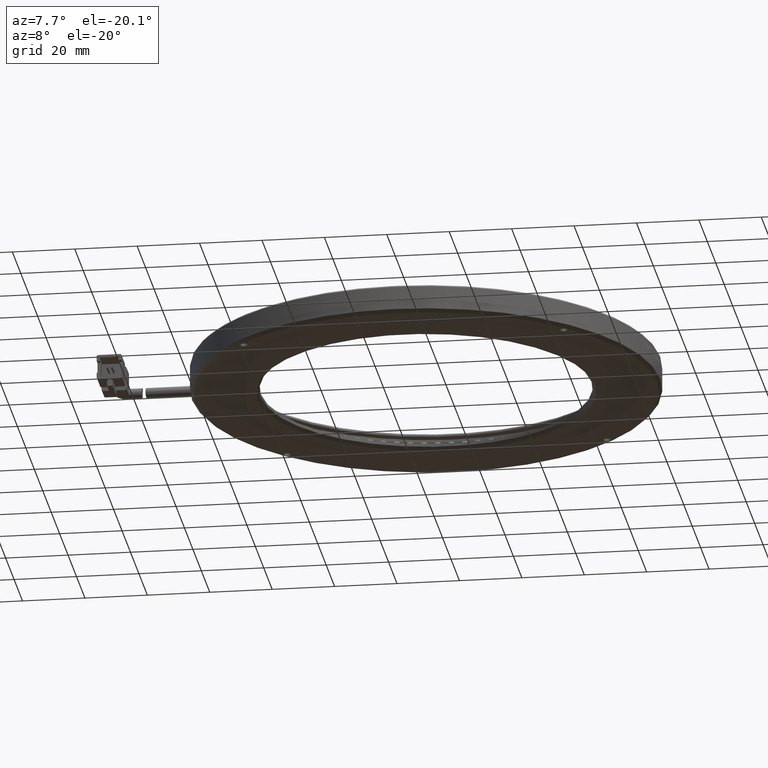
[diagram: clean part render]
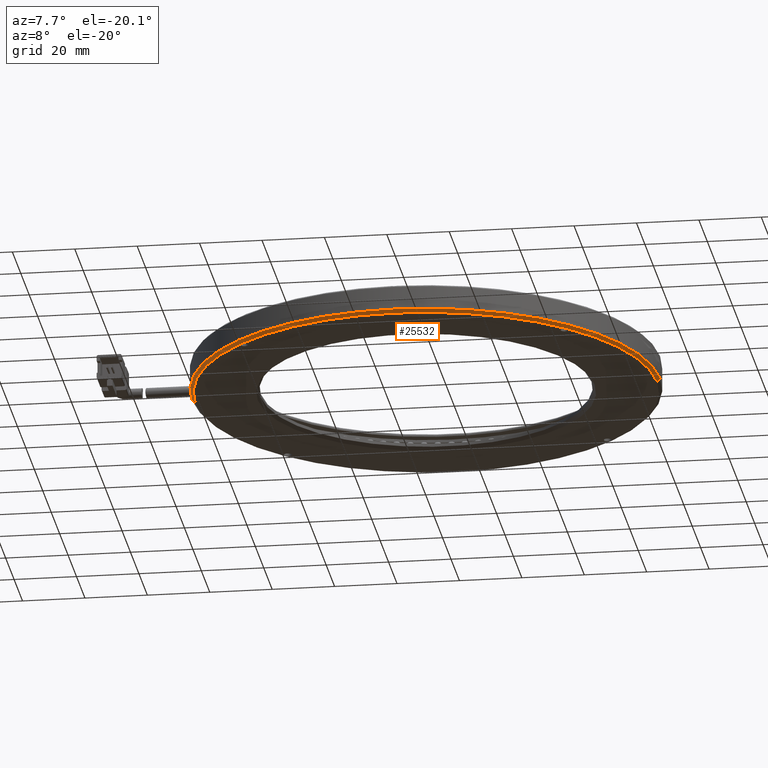
[diagram: same view with one face highlighted and labeled with its STEP entity id]
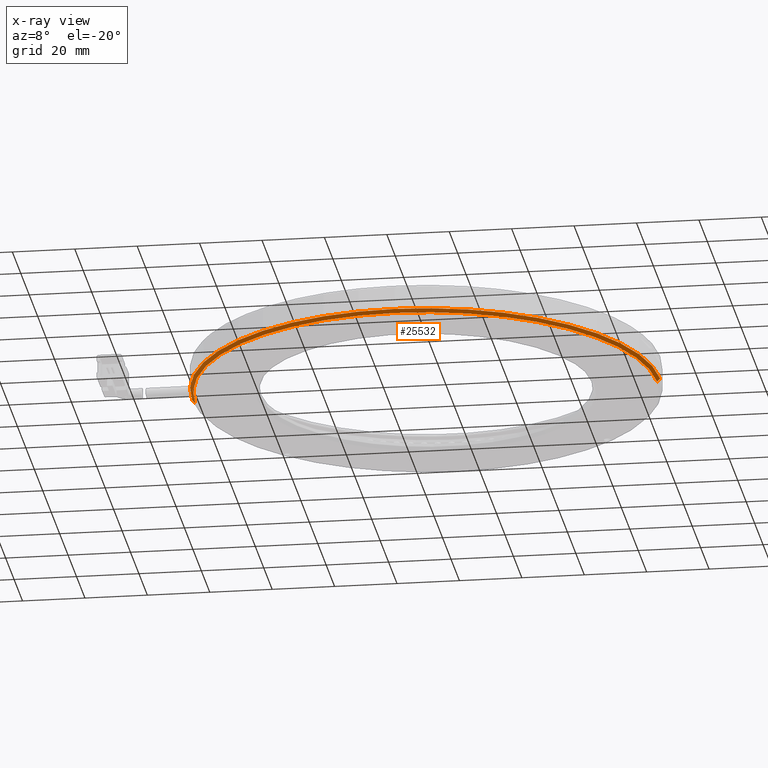
[diagram: x-ray of the same camera — body ghosted, the highlighted face saturated]
A machine part, auxiliary view. The second image highlights one B-rep face of the part: STEP entity #25532.
The next image is the same camera in x-ray: the body ghosted, the highlighted face saturated — about 0% of this face is hidden behind the body in this view.
In plain terms, the highlighted conical surface has half-angle 45 deg.
Its self-contained STEP definition (entity closure, byte-faithful):
#3275 = LINE ( 'NONE', #42011, #35607 ) ;
#10327 = EDGE_CURVE ( 'NONE', #45234, #47845, #68187, .T. ) ;
#12912 = VECTOR ( 'NONE', #47686, 1000.000000000000000 ) ;
#13549 = EDGE_CURVE ( 'NONE', #45234, #69336, #75699, .T. ) ;
#14977 = DIRECTION ( 'NONE',  ( 1.000000000000000000, 0.0000000000000000000, 0.0000000000000000000 ) ) ;
#17329 = CARTESIAN_POINT ( 'NONE',  ( -63.17760152284268600, 1.095939086294429400, -3.500000000000063100 ) ) ;
#18656 = CARTESIAN_POINT ( 'NONE',  ( 84.82239847715739200, 1.095939086294420100, -3.500000000000063100 ) ) ;
#20115 = FACE_OUTER_BOUND ( 'NONE', #56746, .T. ) ;
#20888 = CARTESIAN_POINT ( 'NONE',  ( 10.82239847715735200, 1.095939086294420100, -2.500000000000089700 ) ) ;
#21955 = CARTESIAN_POINT ( 'NONE',  ( 10.82239847715735200, 1.095939086294420100, -3.500000000000063100 ) ) ;
#24880 = DIRECTION ( 'NONE',  ( 0.0000000000000000000, 0.0000000000000000000, -1.000000000000000000 ) ) ;
#25532 = ADVANCED_FACE ( 'NONE', ( #20115 ), #75237, .T. ) ;
#27362 = ORIENTED_EDGE ( 'NONE', *, *, #13549, .F. ) ;
#28024 = DIRECTION ( 'NONE',  ( 1.000000000000000000, 0.0000000000000000000, 0.0000000000000000000 ) ) ;
#31318 = AXIS2_PLACEMENT_3D ( 'NONE', #61341, #24880, #67433 ) ;
#35607 = VECTOR ( 'NONE', #47906, 1000.000000000000000 ) ;
#38239 = ORIENTED_EDGE ( 'NONE', *, *, #69933, .T. ) ;
#39861 = EDGE_CURVE ( 'NONE', #66220, #69336, #53741, .T. ) ;
#42011 = CARTESIAN_POINT ( 'NONE',  ( 85.82239847715736400, 1.095939086294420100, -2.500000000000089700 ) ) ;
#42562 = AXIS2_PLACEMENT_3D ( 'NONE', #21955, #64492, #28024 ) ;
#45234 = VERTEX_POINT ( 'NONE', #17329 ) ;
#46749 = AXIS2_PLACEMENT_3D ( 'NONE', #20888, #57263, #14977 ) ;
#47686 = DIRECTION ( 'NONE',  ( -0.7071067811865469100, 8.659560562354925500E-017, 0.7071067811865482400 ) ) ;
#47845 = VERTEX_POINT ( 'NONE', #18656 ) ;
#47906 = DIRECTION ( 'NONE',  ( 0.7071067811865469100, 0.0000000000000000000, 0.7071067811865482400 ) ) ;
#48525 = CARTESIAN_POINT ( 'NONE',  ( -64.17760152284266400, 1.095939086294420100, -2.500000000000089700 ) ) ;
#50270 = CARTESIAN_POINT ( 'NONE',  ( 85.82239847715736400, 1.095939086294429400, -2.500000000000089700 ) ) ;
#53741 = CIRCLE ( 'NONE', #31318, 75.00000000000001400 ) ;
#53761 = CARTESIAN_POINT ( 'NONE',  ( -64.17760152284266400, 1.095939086294429400, -2.500000000000089700 ) ) ;
#56746 = EDGE_LOOP ( 'NONE', ( #27362, #62740, #38239, #66517 ) ) ;
#57263 = DIRECTION ( 'NONE',  ( 0.0000000000000000000, -0.0000000000000000000, 1.000000000000000000 ) ) ;
#61341 = CARTESIAN_POINT ( 'NONE',  ( 10.82239847715735200, 1.095939086294420100, -2.500000000000089700 ) ) ;
#62740 = ORIENTED_EDGE ( 'NONE', *, *, #10327, .T. ) ;
#64492 = DIRECTION ( 'NONE',  ( 0.0000000000000000000, -0.0000000000000000000, 1.000000000000000000 ) ) ;
#66220 = VERTEX_POINT ( 'NONE', #50270 ) ;
#66517 = ORIENTED_EDGE ( 'NONE', *, *, #39861, .T. ) ;
#67433 = DIRECTION ( 'NONE',  ( 1.000000000000000000, 0.0000000000000000000, 0.0000000000000000000 ) ) ;
#68187 = CIRCLE ( 'NONE', #42562, 74.00000000000004300 ) ;
#69336 = VERTEX_POINT ( 'NONE', #48525 ) ;
#69933 = EDGE_CURVE ( 'NONE', #47845, #66220, #3275, .T. ) ;
#75237 = CONICAL_SURFACE ( 'NONE', #46749, 75.00000000000001400, 0.7853981633974473900 ) ;
#75699 = LINE ( 'NONE', #53761, #12912 ) ;